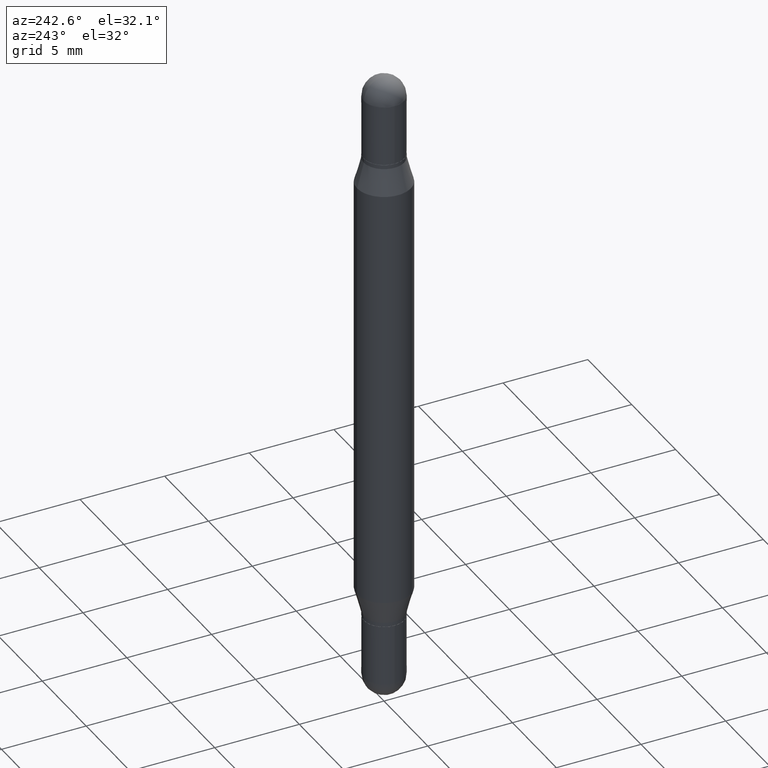
[diagram: clean part render]
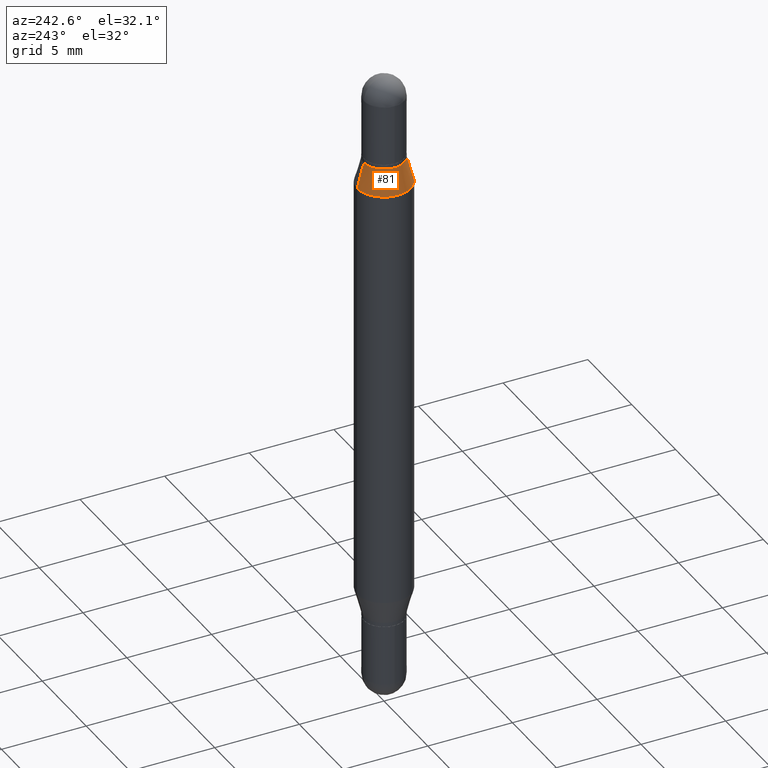
[diagram: same view with one face highlighted and labeled with its STEP entity id]
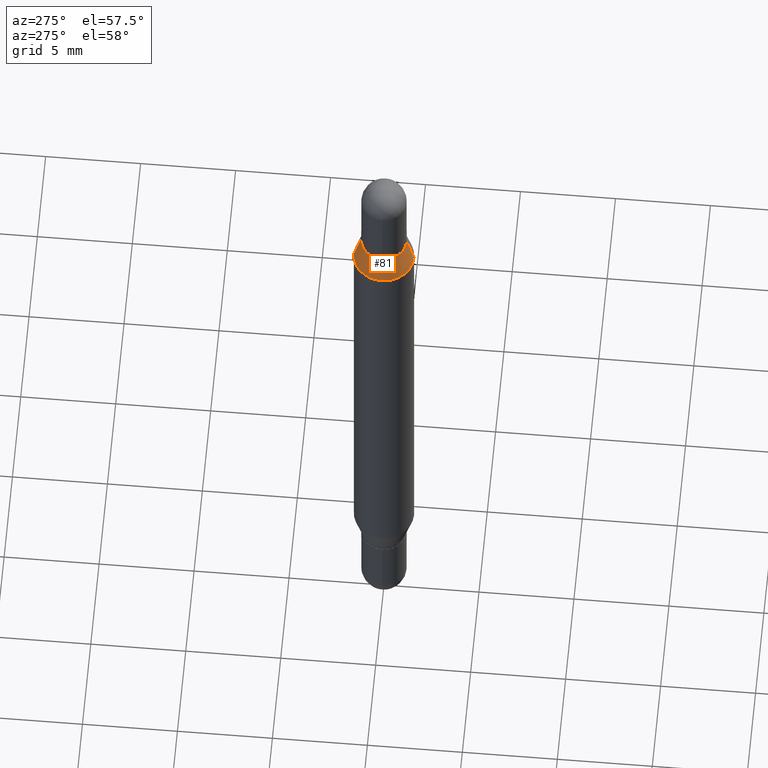
[diagram: same view with one face highlighted and labeled with its STEP entity id]
A machine part, auxiliary view. The second image highlights one B-rep face of the part: STEP entity #81.
A second angle (auxiliary view) of the same face is appended — the face is thin or edge-on in the first view.
In plain terms, the highlighted conical surface has half-angle 15 deg.
Its self-contained STEP definition (entity closure, byte-faithful):
#1 = CARTESIAN_POINT ( 'NONE',  ( -3.275009495834534605E-16, -0.04690000000000060787, -0.1969999999999993978 ) ) ;
#6 = DIRECTION ( 'NONE',  ( 2.445369915949094661E-29, 3.479472850531333708E-15, 1.000000000000000000 ) ) ;
#74 = DIRECTION ( 'NONE',  ( -6.982962677686265922E-15, -1.000000000000000000, 3.278217592397115862E-15 ) ) ;
#81 = ADVANCED_FACE ( 'NONE', ( #892 ), #198, .T. ) ;
#88 = VECTOR ( 'NONE', #172, 39.37007874015747433 ) ;
#95 = DIRECTION ( 'NONE',  ( -1.807323732225338422E-15, -0.2588190451025261241, -0.9659258262890667579 ) ) ;
#96 = VERTEX_POINT ( 'NONE', #128 ) ;
#122 = ORIENTED_EDGE ( 'NONE', *, *, #395, .F. ) ;
#124 = AXIS2_PLACEMENT_3D ( 'NONE', #502, #848, #74 ) ;
#128 = CARTESIAN_POINT ( 'NONE',  ( -3.275009495834534605E-16, -0.04690000000000060787, -0.1969999999999993978 ) ) ;
#144 = CARTESIAN_POINT ( 'NONE',  ( -4.364351673553612490E-16, -0.06250000000000090206, -0.2552199925980737083 ) ) ;
#168 = ORIENTED_EDGE ( 'NONE', *, *, #382, .F. ) ;
#171 = VERTEX_POINT ( 'NONE', #144 ) ;
#172 = DIRECTION ( 'NONE',  ( 1.775627540710973780E-15, 0.2588190451025194627, -0.9659258262890687563 ) ) ;
#175 = LINE ( 'NONE', #1, #1055 ) ;
#198 = CONICAL_SURFACE ( 'NONE', #717, 0.04689999999999991398, 0.2617993877991515173 ) ;
#238 = VERTEX_POINT ( 'NONE', #849 ) ;
#264 = CARTESIAN_POINT ( 'NONE',  ( 3.217573560955160465E-16, 0.04689999999999922009, -0.1969999999999997309 ) ) ;
#283 = CIRCLE ( 'NONE', #475, 0.04689999999999991398 ) ;
#296 = EDGE_LOOP ( 'NONE', ( #122, #628, #470, #168 ) ) ;
#300 = DIRECTION ( 'NONE',  ( -2.445369915949094661E-29, -3.479472850531333708E-15, -1.000000000000000000 ) ) ;
#382 = EDGE_CURVE ( 'NONE', #96, #171, #175, .T. ) ;
#395 = EDGE_CURVE ( 'NONE', #238, #96, #283, .T. ) ;
#470 = ORIENTED_EDGE ( 'NONE', *, *, #710, .T. ) ;
#475 = AXIS2_PLACEMENT_3D ( 'NONE', #867, #6, #508 ) ;
#502 = CARTESIAN_POINT ( 'NONE',  ( 3.043947582075560243E-29, -8.971436137265360818E-16, -0.2552199925980738748 ) ) ;
#508 = DIRECTION ( 'NONE',  ( -6.982962677686266711E-15, -1.000000000000000000, 3.640522379616562132E-15 ) ) ;
#545 = CARTESIAN_POINT ( 'NONE',  ( 3.186317000481670584E-29, -6.945687301234005210E-16, -0.1969999999999995643 ) ) ;
#570 = CIRCLE ( 'NONE', #124, 0.06250000000000000000 ) ;
#628 = ORIENTED_EDGE ( 'NONE', *, *, #976, .T. ) ;
#710 = EDGE_CURVE ( 'NONE', #1106, #171, #570, .T. ) ;
#717 = AXIS2_PLACEMENT_3D ( 'NONE', #545, #300, #1079 ) ;
#848 = DIRECTION ( 'NONE',  ( 2.445369915949094661E-29, 3.479472850531333708E-15, 1.000000000000000000 ) ) ;
#849 = CARTESIAN_POINT ( 'NONE',  ( 3.217573560955161944E-16, 0.04689999999999922009, -0.1969999999999997309 ) ) ;
#851 = LINE ( 'NONE', #264, #88 ) ;
#867 = CARTESIAN_POINT ( 'NONE',  ( 3.186317000481670584E-29, -6.945687301234005210E-16, -0.1969999999999995643 ) ) ;
#892 = FACE_OUTER_BOUND ( 'NONE', #296, .T. ) ;
#976 = EDGE_CURVE ( 'NONE', #238, #1106, #851, .T. ) ;
#1048 = CARTESIAN_POINT ( 'NONE',  ( 4.287811248607510938E-16, 0.06249999999999910488, -0.2552199925980740969 ) ) ;
#1055 = VECTOR ( 'NONE', #95, 39.37007874015748854 ) ;
#1079 = DIRECTION ( 'NONE',  ( -6.982962677686266711E-15, -1.000000000000000000, 3.640522379616562132E-15 ) ) ;
#1106 = VERTEX_POINT ( 'NONE', #1048 ) ;